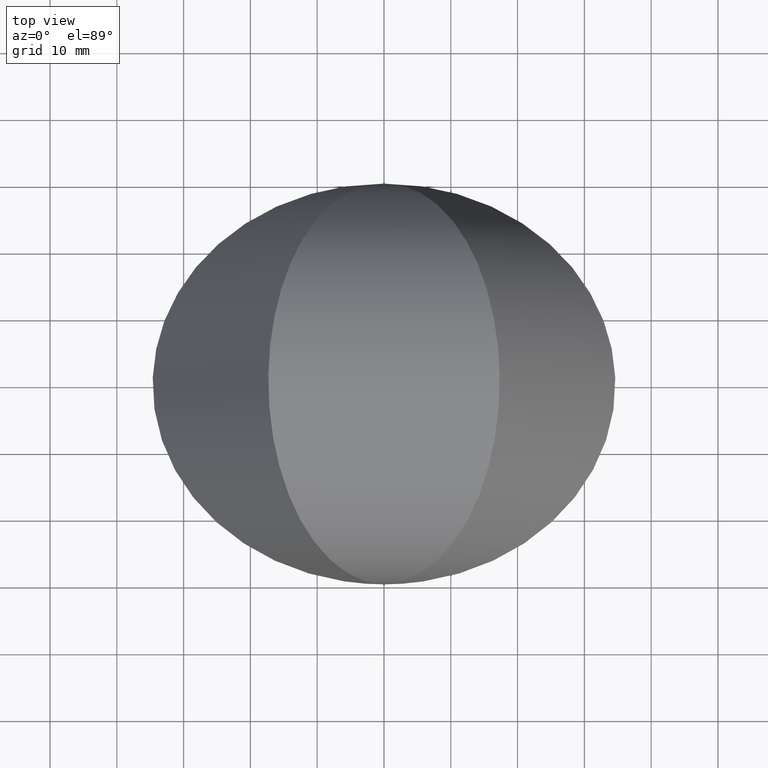
[diagram: clean part render]
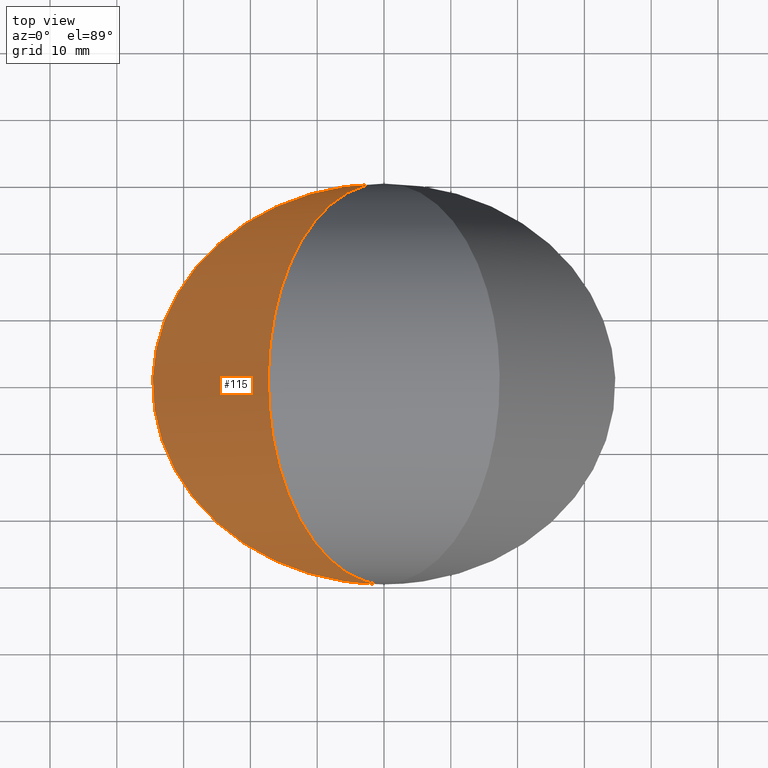
[diagram: same view with one face highlighted and labeled with its STEP entity id]
A machine part, top view. The second image highlights one B-rep face of the part: STEP entity #115.
In plain terms, the highlighted cylindrical surface (partial cylindrical patch) has radius 30 mm, axis along (-0.5, -0, -0.866).
Its self-contained STEP definition (entity closure, byte-faithful):
#10 = DIRECTION ( 'NONE',  ( -0.4999999999999919509, -4.592425496802550306E-16, -0.8660254037844432595 ) ) ;
#14 = CARTESIAN_POINT ( 'NONE',  ( -6.938893903907228378E-15, 30.00000000000000000, 0.000000000000000000 ) ) ;
#18 = CARTESIAN_POINT ( 'NONE',  ( 6.938893903907228378E-15, -30.00000000000000000, 6.938893903907228378E-15 ) ) ;
#19 = CARTESIAN_POINT ( 'NONE',  ( -34.64101615137789025, -30.00000000000001421, 60.00000000000000711 ) ) ;
#29 = FACE_OUTER_BOUND ( 'NONE', #79, .T. ) ;
#31 = AXIS2_PLACEMENT_3D ( 'NONE', #230, #10, #137 ) ;
#61 = CARTESIAN_POINT ( 'NONE',  ( 6.938893903907228378E-15, -30.00000000000000000, 6.938893903907228378E-15 ) ) ;
#71 = CYLINDRICAL_SURFACE ( 'NONE', #31, 30.00000000000000000 ) ;
#79 = EDGE_LOOP ( 'NONE', ( #195, #247 ) ) ;
#85 =( BOUNDED_CURVE ( )  B_SPLINE_CURVE ( 3, ( #237, #180, #19, #61 ),
 .UNSPECIFIED., .F., .T. ) 
 B_SPLINE_CURVE_WITH_KNOTS ( ( 4, 4 ),
 ( 4.712388980384689674, 7.853981633974482790 ),
 .UNSPECIFIED. ) 
 CURVE ( )  GEOMETRIC_REPRESENTATION_ITEM ( )  RATIONAL_B_SPLINE_CURVE ( ( 1.000000000000000000, 0.3333333333333333703, 0.3333333333333333703, 1.000000000000000000 ) ) 
 REPRESENTATION_ITEM ( '' )  );
#115 = ADVANCED_FACE ( 'NONE', ( #29 ), #71, .T. ) ;
#137 = DIRECTION ( 'NONE',  ( -0.8660254037844432595, -2.651438096812281215E-16, 0.4999999999999919509 ) ) ;
#139 = EDGE_CURVE ( 'NONE', #149, #234, #240, .T. ) ;
#142 = CARTESIAN_POINT ( 'NONE',  ( -69.28203230275511260, -30.00000000000002487, -7.124282176929701152E-13 ) ) ;
#143 = CARTESIAN_POINT ( 'NONE',  ( -69.28203230275512681, 29.99999999999999289, -7.336397224674680462E-13 ) ) ;
#149 = VERTEX_POINT ( 'NONE', #236 ) ;
#151 = EDGE_CURVE ( 'NONE', #149, #234, #85, .T. ) ;
#180 = CARTESIAN_POINT ( 'NONE',  ( -34.64101615137791867, 30.00000000000000355, 59.99999999999998579 ) ) ;
#195 = ORIENTED_EDGE ( 'NONE', *, *, #139, .T. ) ;
#230 = CARTESIAN_POINT ( 'NONE',  ( 0.000000000000000000, 0.000000000000000000, -0.000000000000000000 ) ) ;
#234 = VERTEX_POINT ( 'NONE', #18 ) ;
#236 = CARTESIAN_POINT ( 'NONE',  ( -6.938893903907228378E-15, 30.00000000000000000, 0.000000000000000000 ) ) ;
#237 = CARTESIAN_POINT ( 'NONE',  ( -6.938893903907228378E-15, 30.00000000000000000, 0.000000000000000000 ) ) ;
#240 =( BOUNDED_CURVE ( )  B_SPLINE_CURVE ( 3, ( #14, #143, #142, #260 ),
 .UNSPECIFIED., .F., .T. ) 
 B_SPLINE_CURVE_WITH_KNOTS ( ( 4, 4 ),
 ( 4.712388980384689674, 7.853981633974482790 ),
 .UNSPECIFIED. ) 
 CURVE ( )  GEOMETRIC_REPRESENTATION_ITEM ( )  RATIONAL_B_SPLINE_CURVE ( ( 1.000000000000000000, 0.3333333333333333703, 0.3333333333333333703, 1.000000000000000000 ) ) 
 REPRESENTATION_ITEM ( '' )  );
#247 = ORIENTED_EDGE ( 'NONE', *, *, #151, .F. ) ;
#260 = CARTESIAN_POINT ( 'NONE',  ( 6.938893903907228378E-15, -30.00000000000000000, 6.938893903907228378E-15 ) ) ;